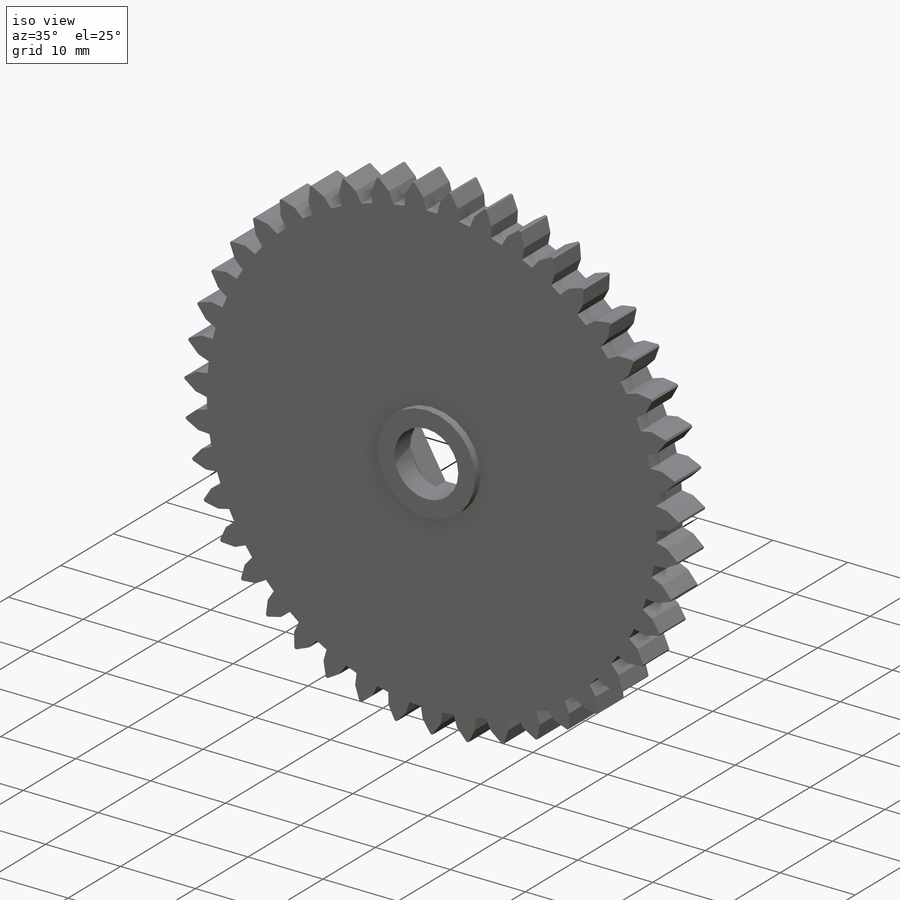
[diagram: iso view]
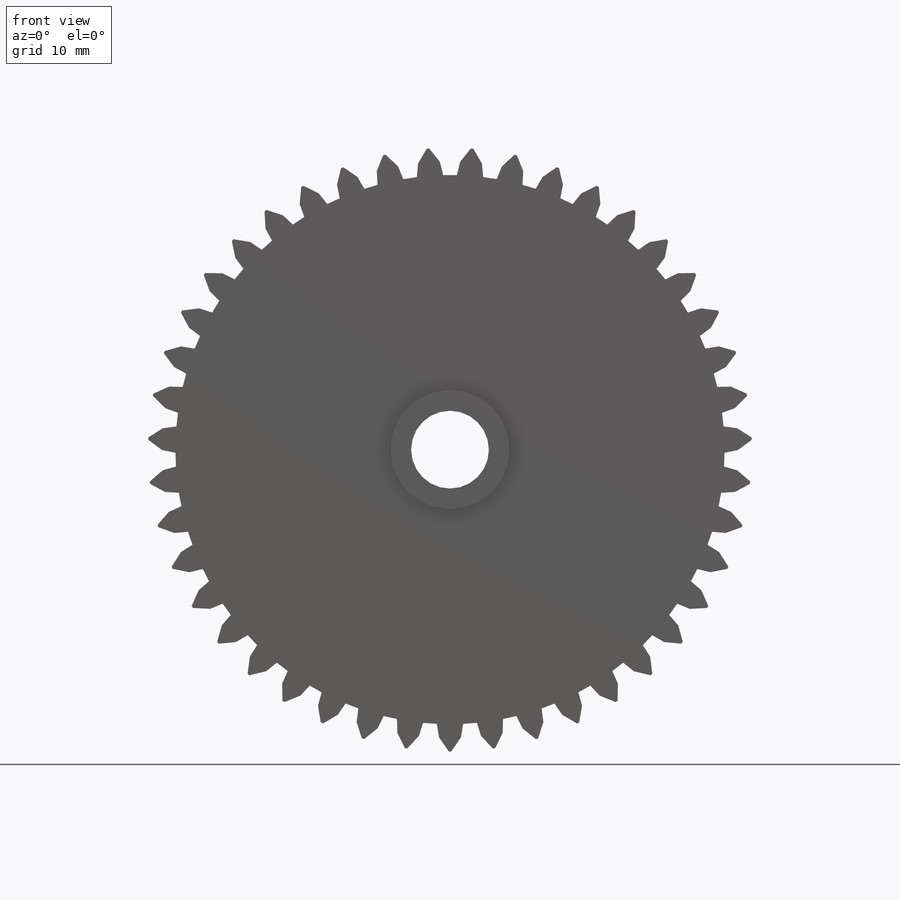
[diagram: front view]
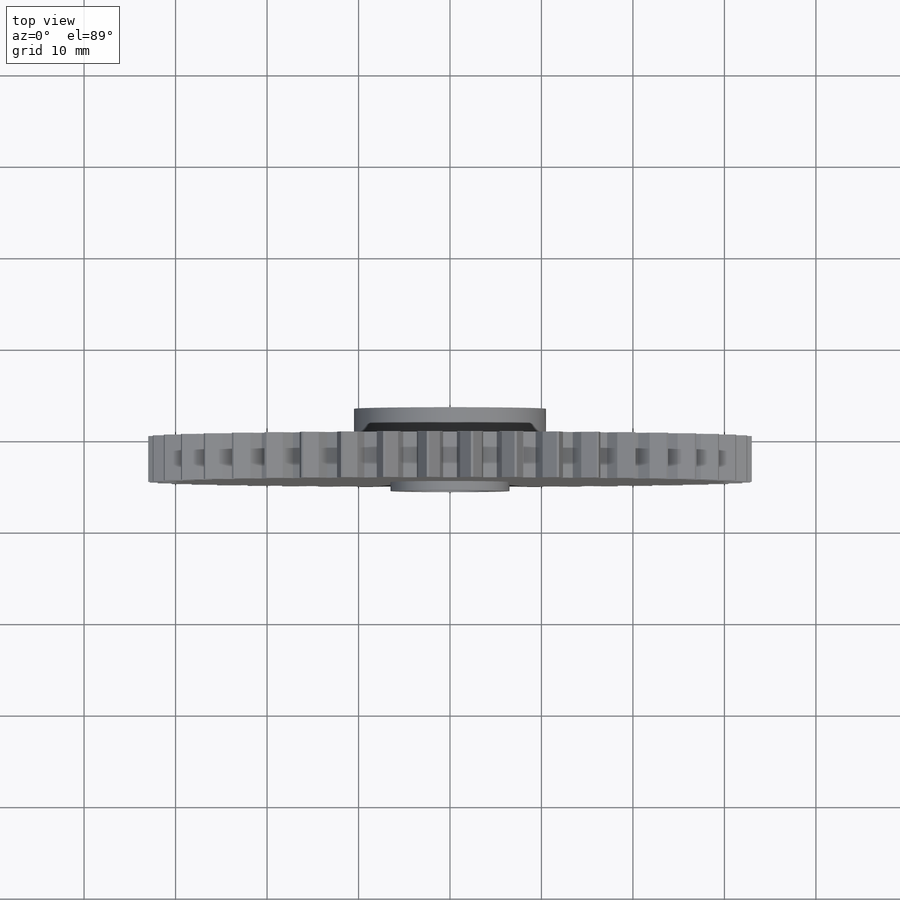
[diagram: top view]
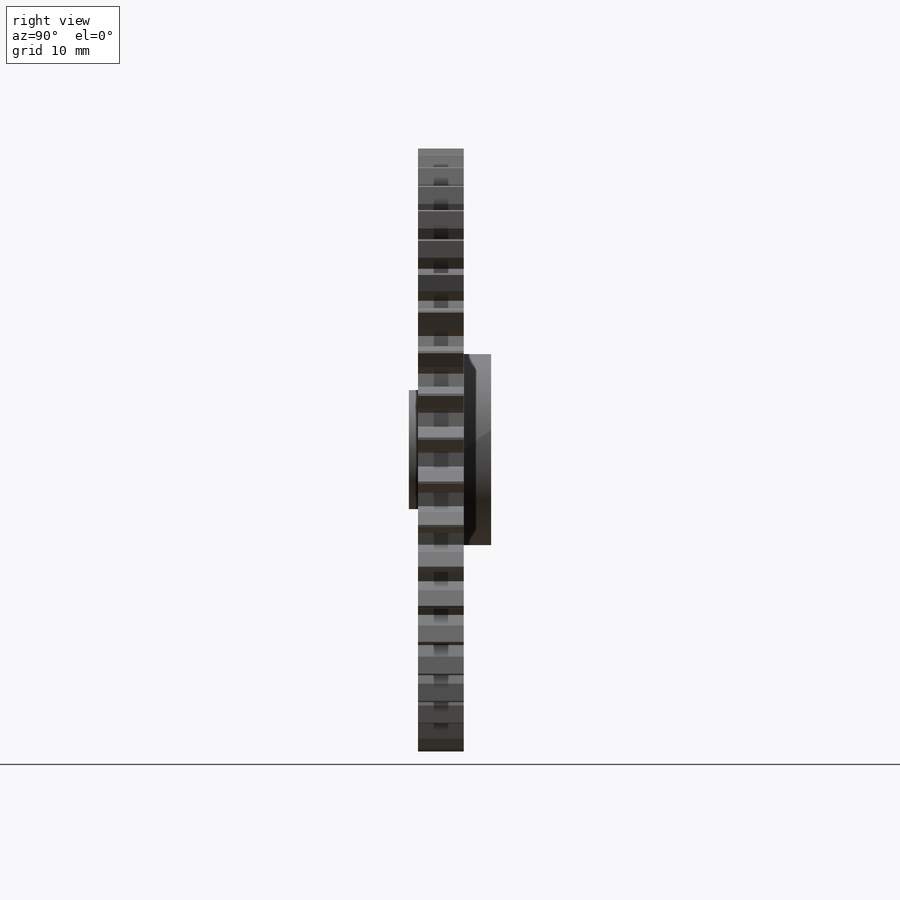
[diagram: right view]
SOLIDWORKS PART (.sldprt)
format: sldprt  version: not decoded by parser v0  size: 516,608 bytes
history: native  units: mm
features: sketch x7, plane x3, extrude x3, cut_extrude x3, material x1, pattern_circular x1 (+10 scaffold rows collapsed)
feature tree (28):
  scaffold x10  (default folders/planes/origin — collapsed)
  material  "Matériau <non spécifié>"
  plane  "Plan de face"
  plane  "Plan de dessus"
  plane  "Plan de droite"
  sketch  "Esquisse1"  dims[D1=66.0mm]
  extrude  "Boss.-Extru.1"  Depth=5mm
  sketch  "Esquisse2"  dims[c1.D1=1.5mm c1.D2=1.5mm c1.D3=2.21mm c1.D4=~1.454168mm c2.D4=155.0deg c2.D5=3.0mm]
  cut_extrude  "Enlèv. mat.-Extru.1"  Depth=6mm
  pattern_circular  "Répétition circulaire1"  Count=43 Angle=360deg
  sketch  "Esquisse3"  dims[D1=21.0mm]
  extrude  "Boss.-Extru.2"  Depth=3mm
  sketch  "Esquisse4"  dims[D1=13.0mm]
  cut_extrude  "Enlèv. mat.-Extru.2"  Depth=6mm
  sketch  "Esquisse5"  dims[D1=8.5mm]
  cut_extrude  "Enlèv. mat.-Extru.3"  [1 undecoded]
  sketch  "Esquisse6"  dims[D1=66.0mm]
  sketch  "Esquisse7"  dims[D1=13.0mm]
  extrude  "Boss.-Extru.3"  Depth=1mm
decode coverage: 13 of 14 modeling features carry decoded parameters
note: ~ marks probable driven/reference dimensions
note: 1 parameter value undecoded
note: suppression state not decoded; provenance and decode notes live in map.json
